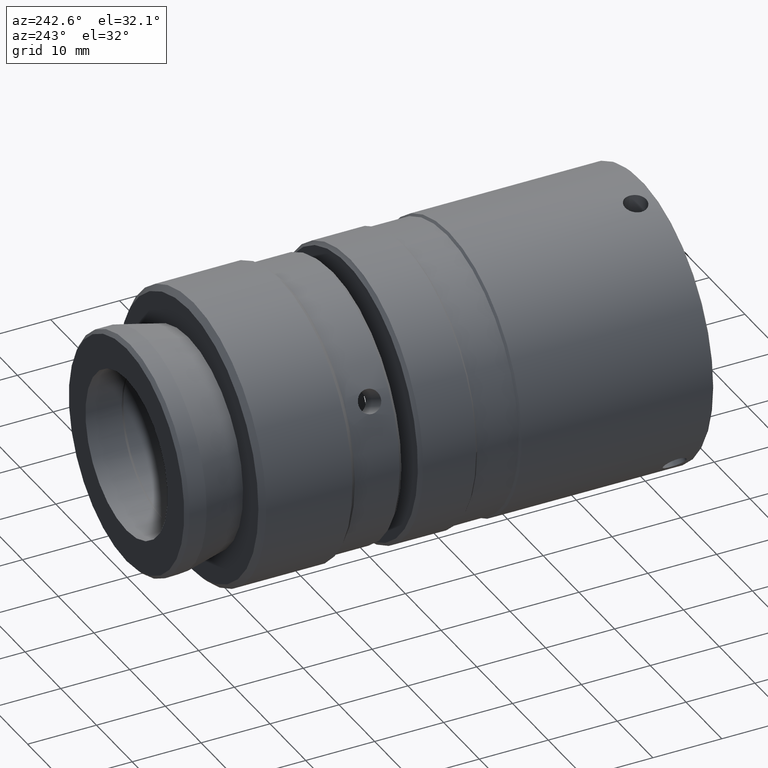
[diagram: clean part render]
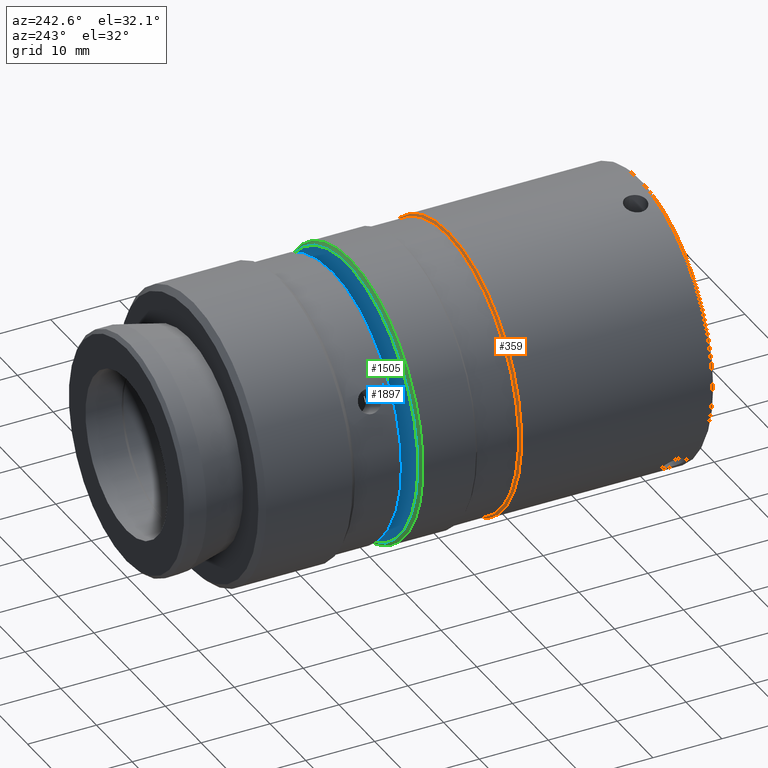
[diagram: same view with three faces highlighted in distinct colors, each labeled with its STEP entity id]
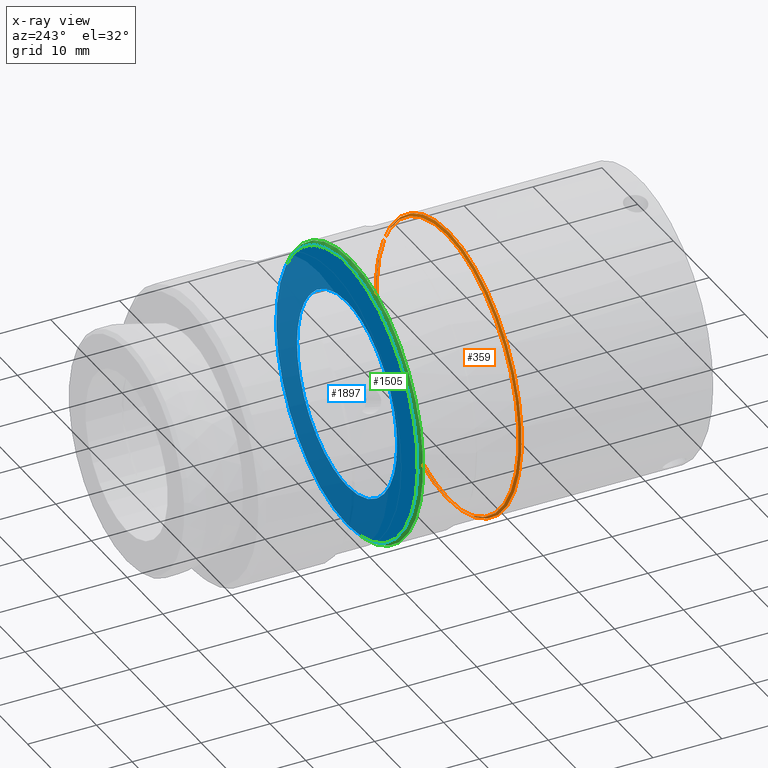
[diagram: x-ray of the same camera — body ghosted, the three highlighted faces saturated]
A machine part, auxiliary view with three faces highlighted in distinct colors.
The next image is the same camera in x-ray (body ghosted, the three faces saturated) — at least one of them is partly hidden behind the body in this view.
Their STEP definitions:

[orange] entity #359 — the highlighted conical surface has half-angle 45 deg.
#81 = DIRECTION ( 'NONE',  ( 0.000000000000000000, 0.000000000000000000, 1.000000000000000000 ) ) ;
#124 = AXIS2_PLACEMENT_3D ( 'NONE', #1053, #2024, #1025 ) ;
#183 = ORIENTED_EDGE ( 'NONE', *, *, #1588, .T. ) ;
#212 = CIRCLE ( 'NONE', #124, 20.01999890642491309 ) ;
#217 = EDGE_CURVE ( 'NONE', #1643, #1643, #589, .T. ) ;
#359 = ADVANCED_FACE ( 'NONE', ( #385, #1457 ), #960, .T. ) ;
#385 = FACE_OUTER_BOUND ( 'NONE', #1945, .T. ) ;
#479 = AXIS2_PLACEMENT_3D ( 'NONE', #543, #995, #1944 ) ;
#543 = CARTESIAN_POINT ( 'NONE',  ( 45.63870267272136516, 15.55661786820467007, 43.32268782812209196 ) ) ;
#589 = CIRCLE ( 'NONE', #1673, 20.31999726070932866 ) ;
#655 = ORIENTED_EDGE ( 'NONE', *, *, #217, .F. ) ;
#734 = VERTEX_POINT ( 'NONE', #1233 ) ;
#854 = DIRECTION ( 'NONE',  ( -0.000000000000000000, -1.000000000000000000, -0.000000000000000000 ) ) ;
#960 = CONICAL_SURFACE ( 'NONE', #479, 20.31999807287878568, 0.7853981258637406926 ) ;
#995 = DIRECTION ( 'NONE',  ( 0.000000000000000000, -1.000000000000000000, 0.000000000000000000 ) ) ;
#1025 = DIRECTION ( 'NONE',  ( 0.000000000000000000, 0.000000000000000000, -1.000000000000000000 ) ) ;
#1053 = CARTESIAN_POINT ( 'NONE',  ( 45.63870267272136516, 15.85661705717870262, 43.32268782812209196 ) ) ;
#1233 = CARTESIAN_POINT ( 'NONE',  ( 45.63870267272136516, 15.85661705717870262, 23.30268892169717887 ) ) ;
#1457 = FACE_BOUND ( 'NONE', #1787, .T. ) ;
#1588 = EDGE_CURVE ( 'NONE', #734, #734, #212, .T. ) ;
#1643 = VERTEX_POINT ( 'NONE', #1973 ) ;
#1673 = AXIS2_PLACEMENT_3D ( 'NONE', #1817, #854, #81 ) ;
#1787 = EDGE_LOOP ( 'NONE', ( #183 ) ) ;
#1817 = CARTESIAN_POINT ( 'NONE',  ( 45.63870267272136516, 15.55661705603528233, 43.32268782812209196 ) ) ;
#1944 = DIRECTION ( 'NONE',  ( 0.000000000000000000, 0.000000000000000000, -1.000000000000000000 ) ) ;
#1945 = EDGE_LOOP ( 'NONE', ( #655 ) ) ;
#1973 = CARTESIAN_POINT ( 'NONE',  ( 45.63870267272136516, 15.55661705603528233, 63.64268508883142061 ) ) ;
#2024 = DIRECTION ( 'NONE',  ( 0.000000000000000000, -1.000000000000000000, 0.000000000000000000 ) ) ;

[blue] entity #1897 — the highlighted planar face has unit normal (0, -1, 0).
#3 = CARTESIAN_POINT ( 'NONE',  ( 54.66087623535627671, 30.35366667322863776, 32.59829459461528955 ) ) ;
#10 = CARTESIAN_POINT ( 'NONE',  ( 32.58027514969628413, 30.35366667322864132, 48.37027933648387545 ) ) ;
#23 = CARTESIAN_POINT ( 'NONE',  ( 33.48604558355999217, 30.35366667322863776, 50.28064861912020689 ) ) ;
#32 = DIRECTION ( 'NONE',  ( 0.000000000000000000, -1.000000000000000000, 0.000000000000000000 ) ) ;
#33 = CARTESIAN_POINT ( 'NONE',  ( 31.75308848968266062, 30.35366667322863421, 45.13140338966040588 ) ) ;
#47 = CARTESIAN_POINT ( 'NONE',  ( 39.40265808648188539, 30.35366667322863776, 30.77252150035418765 ) ) ;
#60 = CARTESIAN_POINT ( 'NONE',  ( 35.39772601076866465, 30.35366667322863776, 33.76462236312958254 ) ) ;
#82 = CARTESIAN_POINT ( 'NONE',  ( 43.93286081276013277, 30.35366667322864487, 57.24477954739943186 ) ) ;
#88 = CARTESIAN_POINT ( 'NONE',  ( 46.06669304492272232, 30.35366667322864487, 57.32268782812211327 ) ) ;
#94 = CARTESIAN_POINT ( 'NONE',  ( 36.61652911008112454, 30.35366667322864132, 54.04708106162491532 ) ) ;
#103 = CARTESIAN_POINT ( 'NONE',  ( 47.44764512464394102, 30.35366667322864487, 57.20826004081069271 ) ) ;
#111 = CARTESIAN_POINT ( 'NONE',  ( 58.82276626306069289, 30.35366667322864132, 48.05420447735371425 ) ) ;
#120 = CARTESIAN_POINT ( 'NONE',  ( 49.72813195842265088, 30.35366667322863776, 29.91969883830028820 ) ) ;
#130 = CARTESIAN_POINT ( 'NONE',  ( 50.98400863279298534, 30.35366667322863776, 30.38306672768814209 ) ) ;
#143 = CARTESIAN_POINT ( 'NONE',  ( 58.48174888480523492, 30.35366667322864132, 37.72978056529146329 ) ) ;
#153 = CARTESIAN_POINT ( 'NONE',  ( 46.49555898676344867, 30.35366667322865197, 29.32272028696540289 ) ) ;
#167 = CARTESIAN_POINT ( 'NONE',  ( 32.54966588280276341, 30.35366667322864487, 48.29085719649300756 ) ) ;
#174 = CARTESIAN_POINT ( 'NONE',  ( 45.63870267272136516, 30.35366667322864132, 23.50268782812237589 ) ) ;
#179 = CARTESIAN_POINT ( 'NONE',  ( 31.87729478059504018, 30.35366667322864487, 40.74891463118267154 ) ) ;
#180 = CARTESIAN_POINT ( 'NONE',  ( 41.43703278318668737, 30.35366667322864132, 43.32268782812209196 ) ) ;
#191 = CARTESIAN_POINT ( 'NONE',  ( 38.02829137467352894, 30.35366667322864487, 31.57172372075717348 ) ) ;
#201 = CARTESIAN_POINT ( 'NONE',  ( 40.04579540989369946, 30.35366667322864487, 30.47964161603635702 ) ) ;
#215 = CARTESIAN_POINT ( 'NONE',  ( 34.40073396783783011, 30.35366667322863776, 34.96727995106603260 ) ) ;
#233 = AXIS2_PLACEMENT_3D ( 'NONE', #180, #1286, #513 ) ;
#245 = CARTESIAN_POINT ( 'NONE',  ( 59.43801066682954115, 30.35366667322864842, 40.95963134834791219 ) ) ;
#252 = CARTESIAN_POINT ( 'NONE',  ( 38.98363462672233481, 30.35366667322863066, 55.65577592233105264 ) ) ;
#263 = B_SPLINE_CURVE_WITH_KNOTS ( 'NONE', 3,
 ( #1069, #88, #1077, #103, #1263, #935, #425, #1378, #442, #1896, #1057, #756, #417, #432, #723, #925, #1390, #265, #1720, #273, #2047, #577, #1857, #1555, #1410, #1234, #1253, #749, #912, #1083, #1582, #767, #1243, #1880, #899, #2017, #606, #1571, #1870, #1401, #2054, #111, #1727, #2038, #406, #586, #1712, #1417, #1092, #1737, #919, #1563, #283, #564, #1219, #245, #945, #1603, #294, #1273, #1777, #793, #1619, #1933, #652, #1758, #333, #143, #955, #1915, #1595, #305, #967, #1445, #2071, #1113, #635, #3, #801, #463, #1923, #1290, #322, #472, #985, #975, #1612, #130, #1121, #1429, #2082, #2064, #120, #1766, #1307, #313, #1436, #1281, #1908, #626, #153, #493 ),
 .UNSPECIFIED., .F., .F.,
 ( 4, 1, 1, 1, 1, 2, 2, 1, 1, 1, 1, 2, 2, 1, 1, 1, 2, 2, 2, 1, 1, 1, 2, 2, 1, 1, 1, 1, 2, 2, 1, 1, 1, 1, 2, 2, 2, 1, 1, 1, 1, 2, 2, 1, 1, 1, 1, 2, 2, 1, 1, 1, 2, 2, 2, 1, 1, 1, 2, 2, 1, 1, 1, 1, 2, 2, 1, 1, 1, 1, 2, 2, 4 ),
 ( 0.000000000000000000, 0.03124999999998832878, 0.04687499999998224337, 0.05468749999997920413, 0.05859374999997763594, 0.06054687499997690042, 0.06249999999997616490, 0.09374999999997132849, 0.1093749999999688999, 0.1171874999999679146, 0.1210937499999676509, 0.1230468749999677480, 0.1249999999999678313, 0.1562499999999688860, 0.1718749999999693301, 0.1796874999999695521, 0.1835937499999696076, 0.1874999999999696354, 0.2499999999999722444, 0.2812499999999735767, 0.2968749999999741873, 0.3046874999999744649, 0.3085937499999746869, 0.3124999999999748534, 0.3437499999999728550, 0.3593749999999716338, 0.3671874999999710787, 0.3710937499999706346, 0.3730468749999704681, 0.3749999999999703015, 0.4062499999999663602, 0.4218749999999644174, 0.4296874999999634182, 0.4335937499999629741, 0.4355468749999628075, 0.4374999999999625855, 0.4999999999999638067, 0.5312499999999643618, 0.5468749999999643618, 0.5546874999999643618, 0.5585937499999643618, 0.5605468749999642508, 0.5624999999999642508, 0.5937499999999658051, 0.6093749999999665823, 0.6171874999999669154, 0.6210937499999670264, 0.6230468749999669154, 0.6249999999999668043, 0.6562499999999706901, 0.6718749999999725775, 0.6796874999999734657, 0.6835937499999736877, 0.6874999999999740208, 0.7499999999999761302, 0.7812499999999770184, 0.7968749999999773515, 0.8046874999999775735, 0.8085937499999774625, 0.8124999999999773515, 0.8437499999999774625, 0.8593749999999774625, 0.8671874999999772404, 0.8710937499999771294, 0.8730468749999772404, 0.8749999999999773515, 0.9062499999999811262, 0.9218749999999831246, 0.9296874999999841238, 0.9335937499999844569, 0.9355468749999845679, 0.9374999999999845679, 1.000000000000000000 ),
 .UNSPECIFIED. ) ;
#265 = CARTESIAN_POINT ( 'NONE',  ( 51.23160993554363074, 30.35366667322864132, 56.16573404020971338 ) ) ;
#273 = CARTESIAN_POINT ( 'NONE',  ( 52.59666346371436418, 30.35366667322863421, 55.47534491728468709 ) ) ;
#283 = CARTESIAN_POINT ( 'NONE',  ( 59.60954302792209347, 30.35366667322863421, 42.25557185559569717 ) ) ;
#294 = CARTESIAN_POINT ( 'NONE',  ( 59.41013576382245986, 30.35366667322864487, 40.80308877389722255 ) ) ;
#305 = CARTESIAN_POINT ( 'NONE',  ( 57.48450014634912009, 30.35366667322864487, 35.86074127423291458 ) ) ;
#313 = CARTESIAN_POINT ( 'NONE',  ( 48.38132090459405532, 30.35366667322863776, 29.59375486044225312 ) ) ;
#322 = CARTESIAN_POINT ( 'NONE',  ( 53.34909758973284966, 30.35366667322863776, 31.63709092498251252 ) ) ;
#327 = CARTESIAN_POINT ( 'NONE',  ( 32.47998111692992040, 30.35366667322863776, 48.10505358639640150 ) ) ;
#333 = CARTESIAN_POINT ( 'NONE',  ( 58.66661326276958022, 30.35366667322865197, 38.19683572731562293 ) ) ;
#335 = VERTEX_POINT ( 'NONE', #174 ) ;
#339 = CARTESIAN_POINT ( 'NONE',  ( 36.42217118679213428, 30.35366667322864132, 32.74033394827176124 ) ) ;
#340 = FACE_OUTER_BOUND ( 'NONE', #1095, .T. ) ;
#350 = CARTESIAN_POINT ( 'NONE',  ( 40.51285057191526562, 30.35366667322864132, 30.29477723807378808 ) ) ;
#364 = CARTESIAN_POINT ( 'NONE',  ( 34.44919672051415205, 30.35366667322864487, 51.79202836500988383 ) ) ;
#376 = CARTESIAN_POINT ( 'NONE',  ( 31.63867069531179510, 30.35366667322864842, 43.75050533145925868 ) ) ;
#401 = CARTESIAN_POINT ( 'NONE',  ( 36.08063720772046423, 30.35366667322864842, 53.56366449006794284 ) ) ;
#406 = CARTESIAN_POINT ( 'NONE',  ( 59.32798814142892496, 30.35366667322863776, 46.25975807836991294 ) ) ;
#417 = CARTESIAN_POINT ( 'NONE',  ( 50.42106843075291067, 30.35366667322864487, 56.48140938401004263 ) ) ;
#421 = CARTESIAN_POINT ( 'NONE',  ( 44.78202172401680059, 30.35366667322864132, 57.32268782812207775 ) ) ;
#423 = CIRCLE ( 'NONE', #1769, 19.81999999999971251 ) ;
#425 = CARTESIAN_POINT ( 'NONE',  ( 48.08085947176112285, 30.35366667322864487, 57.10805964460782036 ) ) ;
#428 = EDGE_CURVE ( 'NONE', #1623, #1730, #2091, .T. ) ;
#432 = CARTESIAN_POINT ( 'NONE',  ( 50.60687204096247882, 30.35366667322864487, 56.41172461809227912 ) ) ;
#442 = CARTESIAN_POINT ( 'NONE',  ( 48.15830172696567502, 30.35366667322864487, 57.09412091921542753 ) ) ;
#463 = CARTESIAN_POINT ( 'NONE',  ( 53.65033809046109781, 30.35366667322863421, 31.84053401975425857 ) ) ;
#472 = CARTESIAN_POINT ( 'NONE',  ( 52.90397226315538859, 30.35366667322863776, 31.34602863968728670 ) ) ;
#478 = CARTESIAN_POINT ( 'NONE',  ( 43.27561123085837380, 30.35366667322864132, 29.52338630131415087 ) ) ;
#488 = CARTESIAN_POINT ( 'NONE',  ( 31.63876662754050528, 30.35366667322863421, 42.46705282144687743 ) ) ;
#491 = CARTESIAN_POINT ( 'NONE',  ( 45.63870267272136516, 30.35366667322864132, 29.32268782812209196 ) ) ;
#493 = CARTESIAN_POINT ( 'NONE',  ( 45.63870267272136516, 30.35366667322864132, 29.32268782812209196 ) ) ;
#499 = CARTESIAN_POINT ( 'NONE',  ( 38.17675611883375097, 30.35366667322864132, 31.47689035449330319 ) ) ;
#501 = FACE_BOUND ( 'NONE', #1328, .T. ) ;
#512 = CARTESIAN_POINT ( 'NONE',  ( 31.80849389565477381, 30.35366667322864842, 45.50114102786930914 ) ) ;
#513 = DIRECTION ( 'NONE',  ( 0.000000000000000000, -0.000000000000000000, -1.000000000000000000 ) ) ;
#523 = CARTESIAN_POINT ( 'NONE',  ( 33.88773856535669182, 30.35366667322864132, 50.93309912617030477 ) ) ;
#536 = CARTESIAN_POINT ( 'NONE',  ( 40.67053330435254566, 30.35366667322864132, 30.23365103820253807 ) ) ;
#542 = ORIENTED_EDGE ( 'NONE', *, *, #1947, .F. ) ;
#547 = CARTESIAN_POINT ( 'NONE',  ( 37.28329479565435634, 30.35366667322864132, 54.56065653299668128 ) ) ;
#559 = CARTESIAN_POINT ( 'NONE',  ( 42.31477884913381615, 30.35366667322863776, 56.92576238200577876 ) ) ;
#564 = CARTESIAN_POINT ( 'NONE',  ( 59.52431685576372900, 30.35366667322864132, 41.51397226660985496 ) ) ;
#577 = CARTESIAN_POINT ( 'NONE',  ( 53.10064922660674824, 30.35366667322863066, 55.16848530175152376 ) ) ;
#582 = CARTESIAN_POINT ( 'NONE',  ( 40.45901365741543998, 30.35366667322863421, 56.32928483157448341 ) ) ;
#586 = CARTESIAN_POINT ( 'NONE',  ( 59.36763564039801366, 30.35366667322864842, 46.06530606000451655 ) ) ;
#606 = CARTESIAN_POINT ( 'NONE',  ( 58.49860054424598133, 30.35366667322863421, 48.85875602519767824 ) ) ;
#626 = CARTESIAN_POINT ( 'NONE',  ( 47.34471989802010228, 30.35366667322864842, 29.40062856768805233 ) ) ;
#635 = CARTESIAN_POINT ( 'NONE',  ( 55.19676813771903312, 30.35366667322864487, 33.08171116617376839 ) ) ;
#652 = CARTESIAN_POINT ( 'NONE',  ( 58.69713019574639645, 30.35366667322864487, 38.27509631975953397 ) ) ;
#657 = ORIENTED_EDGE ( 'NONE', *, *, #428, .F. ) ;
#658 = CARTESIAN_POINT ( 'NONE',  ( 32.61079208267300089, 30.35366667322864487, 48.44853992892799255 ) ) ;
#669 = CARTESIAN_POINT ( 'NONE',  ( 33.69875421292354645, 30.35366667322864487, 50.63450405336296711 ) ) ;
#680 = CARTESIAN_POINT ( 'NONE',  ( 33.79290519909207546, 30.35366667322863066, 50.78463438200887481 ) ) ;
#694 = CARTESIAN_POINT ( 'NONE',  ( 33.30561457851306528, 30.35366667322862355, 36.66761978212549167 ) ) ;
#707 = CARTESIAN_POINT ( 'NONE',  ( 33.95310576958329563, 30.35366667322864132, 35.61229291110809214 ) ) ;
#723 = CARTESIAN_POINT ( 'NONE',  ( 50.68629418100736927, 30.35366667322864132, 56.38111535117731421 ) ) ;
#742 = CARTESIAN_POINT ( 'NONE',  ( 39.72476336922802176, 30.35366667322864132, 56.01621489842835189 ) ) ;
#749 = CARTESIAN_POINT ( 'NONE',  ( 56.36309590624178156, 30.35366667322863776, 52.34486139074609667 ) ) ;
#756 = CARTESIAN_POINT ( 'NONE',  ( 50.04752007658109392, 30.35366667322864132, 56.61383148830995538 ) ) ;
#767 = CARTESIAN_POINT ( 'NONE',  ( 57.29017334674325213, 30.35366667322864487, 51.08456616822144980 ) ) ;
#793 = CARTESIAN_POINT ( 'NONE',  ( 58.92984633274470241, 30.35366667322863776, 38.91387042384521067 ) ) ;
#801 = CARTESIAN_POINT ( 'NONE',  ( 53.99411054978429547, 30.35366667322863776, 32.08471912324447572 ) ) ;
#817 = CARTESIAN_POINT ( 'NONE',  ( 31.89351891188926658, 30.35366667322864487, 40.66362586546468805 ) ) ;
#829 = DIRECTION ( 'NONE',  ( 0.000000000000000000, 0.000000000000000000, -1.000000000000000000 ) ) ;
#831 = CARTESIAN_POINT ( 'NONE',  ( 31.83939467861421235, 30.35366667322863421, 45.68574430790383190 ) ) ;
#834 = CARTESIAN_POINT ( 'NONE',  ( 45.21079992850087592, 30.35366667322864487, 29.32267161860375992 ) ) ;
#843 = CARTESIAN_POINT ( 'NONE',  ( 40.53820928850428373, 30.35366667322863776, 30.28483189796664377 ) ) ;
#855 = CARTESIAN_POINT ( 'NONE',  ( 38.07700745536237719, 30.35366667322864842, 31.54032215527502458 ) ) ;
#865 = ORIENTED_EDGE ( 'NONE', *, *, #1408, .F. ) ;
#870 = CARTESIAN_POINT ( 'NONE',  ( 31.94941720400817076, 30.35366667322863066, 40.38561757789734230 ) ) ;
#899 = CARTESIAN_POINT ( 'NONE',  ( 57.97179076691474364, 30.35366667322863776, 49.97775587413455867 ) ) ;
#907 = CARTESIAN_POINT ( 'NONE',  ( 45.63870267272136516, 30.35366667322864132, 57.32268782812209196 ) ) ;
#912 = CARTESIAN_POINT ( 'NONE',  ( 56.87667137760922031, 30.35366667322863776, 51.67809570517678708 ) ) ;
#916 = CARTESIAN_POINT ( 'NONE',  ( 40.43039482538431173, 30.35366667322864487, 56.31785273685046889 ) ) ;
#919 = CARTESIAN_POINT ( 'NONE',  ( 59.63863871789649806, 30.35366667322863421, 44.17832283475546973 ) ) ;
#925 = CARTESIAN_POINT ( 'NONE',  ( 50.73919605690031176, 30.35366667322863776, 56.36054375829264984 ) ) ;
#935 = CARTESIAN_POINT ( 'NONE',  ( 48.00183005574849915, 30.35366667322864842, 57.12198270649478360 ) ) ;
#945 = CARTESIAN_POINT ( 'NONE',  ( 59.42408217128070191, 30.35366667322864842, 40.88057255813031787 ) ) ;
#955 = CARTESIAN_POINT ( 'NONE',  ( 58.18886900048615729, 30.35366667322863421, 37.08664324187784445 ) ) ;
#967 = CARTESIAN_POINT ( 'NONE',  ( 57.42106834556779660, 30.35366667322864487, 35.76099261076208791 ) ) ;
#975 = CARTESIAN_POINT ( 'NONE',  ( 51.55264197623416322, 30.35366667322864132, 30.62916075782887049 ) ) ;
#980 = CARTESIAN_POINT ( 'NONE',  ( 32.64353776399309481, 30.35366667322865197, 38.11437998078504563 ) ) ;
#985 = CARTESIAN_POINT ( 'NONE',  ( 52.29377071874637295, 30.35366667322863421, 30.98959973393053602 ) ) ;
#992 = CARTESIAN_POINT ( 'NONE',  ( 33.98723199870055822, 30.35366667322864842, 35.56080948802200936 ) ) ;
#993 = PLANE ( 'NONE',  #233 ) ;
#1003 = CARTESIAN_POINT ( 'NONE',  ( 38.68074188172126071, 30.35366667322864132, 31.17003073896192689 ) ) ;
#1013 = CARTESIAN_POINT ( 'NONE',  ( 31.95495444719655254, 30.35366667322864842, 46.31630943462283057 ) ) ;
#1024 = CARTESIAN_POINT ( 'NONE',  ( 31.86276112738401523, 30.35366667322864132, 45.81749631354308860 ) ) ;
#1057 = CARTESIAN_POINT ( 'NONE',  ( 49.29265883322679542, 30.35366667322864132, 56.85088598676755822 ) ) ;
#1069 = CARTESIAN_POINT ( 'NONE',  ( 45.63870267272136516, 30.35366667322864132, 57.32268782812209196 ) ) ;
#1074 = CARTESIAN_POINT ( 'NONE',  ( 45.63870267272136516, 30.35366667322864132, 57.32268782812209196 ) ) ;
#1077 = CARTESIAN_POINT ( 'NONE',  ( 46.70612116579499684, 30.35366667322864132, 57.29347222285108643 ) ) ;
#1083 = CARTESIAN_POINT ( 'NONE',  ( 57.12085648109519553, 30.35366667322863776, 51.33432324585697870 ) ) ;
#1092 = CARTESIAN_POINT ( 'NONE',  ( 59.40011056484802054, 30.35366667322863776, 45.89646102505921732 ) ) ;
#1095 = EDGE_LOOP ( 'NONE', ( #865 ) ) ;
#1113 = CARTESIAN_POINT ( 'NONE',  ( 56.22105655256029877, 30.35366667322864132, 34.10615634218302006 ) ) ;
#1121 = CARTESIAN_POINT ( 'NONE',  ( 50.90186195611873643, 30.35366667322864132, 30.34964152352058875 ) ) ;
#1130 = CARTESIAN_POINT ( 'NONE',  ( 43.14388369867576500, 30.35366667322864132, 29.54674822297453929 ) ) ;
#1138 = CARTESIAN_POINT ( 'NONE',  ( 32.03562812838295315, 30.35366667322863776, 39.99876398042589898 ) ) ;
#1151 = CARTESIAN_POINT ( 'NONE',  ( 32.94517560241561682, 30.35366667322863421, 37.40874852463051781 ) ) ;
#1154 = CARTESIAN_POINT ( 'NONE',  ( 42.64508106622609773, 30.35366667322864132, 29.63893960259477112 ) ) ;
#1161 = CARTESIAN_POINT ( 'NONE',  ( 45.63870267272136516, 30.35366667322864132, 43.32268782812209196 ) ) ;
#1162 = CARTESIAN_POINT ( 'NONE',  ( 33.08853634495191187, 30.35366667322863776, 49.55873241435897825 ) ) ;
#1174 = CARTESIAN_POINT ( 'NONE',  ( 32.66565636811771611, 30.35366667322864487, 38.05952854472825919 ) ) ;
#1187 = CARTESIAN_POINT ( 'NONE',  ( 34.15654886435019932, 30.35366667322864132, 35.31105241038615361 ) ) ;
#1200 = CARTESIAN_POINT ( 'NONE',  ( 37.87682433261931436, 30.35366667322864842, 54.97415850214126465 ) ) ;
#1219 = CARTESIAN_POINT ( 'NONE',  ( 59.46891144979001353, 30.35366667322863421, 41.14423462838974643 ) ) ;
#1228 = CARTESIAN_POINT ( 'NONE',  ( 40.10263447565137795, 30.35366667322863776, 56.18258569965342275 ) ) ;
#1234 = CARTESIAN_POINT ( 'NONE',  ( 54.85523415864505381, 30.35366667322863776, 53.90504170797328953 ) ) ;
#1238 = CARTESIAN_POINT ( 'NONE',  ( 37.62706725497909588, 30.35366667322864842, 54.80484163648808504 ) ) ;
#1243 = CARTESIAN_POINT ( 'NONE',  ( 57.32429957586089841, 30.35366667322864842, 51.03308274513432963 ) ) ;
#1253 = CARTESIAN_POINT ( 'NONE',  ( 55.87967933467749759, 30.35366667322864842, 52.88075329311352846 ) ) ;
#1263 = CARTESIAN_POINT ( 'NONE',  ( 47.81728822519289679, 30.35366667322864842, 57.15287212248443183 ) ) ;
#1273 = CARTESIAN_POINT ( 'NONE',  ( 59.32245089824701267, 30.35366667322864132, 40.32906622162068544 ) ) ;
#1281 = CARTESIAN_POINT ( 'NONE',  ( 48.24201163592201169, 30.35366667322864487, 29.56683487010345246 ) ) ;
#1286 = DIRECTION ( 'NONE',  ( 0.000000000000000000, -1.000000000000000000, 0.000000000000000000 ) ) ;
#1290 = CARTESIAN_POINT ( 'NONE',  ( 53.40058101282235725, 30.35366667322864487, 31.67121715410214122 ) ) ;
#1307 = CARTESIAN_POINT ( 'NONE',  ( 48.57577292295074045, 30.35366667322864132, 29.63340235940848189 ) ) ;
#1313 = CARTESIAN_POINT ( 'NONE',  ( 33.66204348427714166, 30.35366667322864132, 36.05741823770411258 ) ) ;
#1316 = CARTESIAN_POINT ( 'NONE',  ( 43.46018421042276714, 30.35366667322865197, 29.49249112334728906 ) ) ;
#1325 = CARTESIAN_POINT ( 'NONE',  ( 32.69908157228363166, 30.35366667322864132, 37.97738186805681693 ) ) ;
#1328 = EDGE_LOOP ( 'NONE', ( #657, #542 ) ) ;
#1334 = CARTESIAN_POINT ( 'NONE',  ( 33.85633699987396028, 30.35366667322864487, 50.88438304548057545 ) ) ;
#1349 = CARTESIAN_POINT ( 'NONE',  ( 32.63210566881451768, 30.35366667322864487, 38.14299881396400593 ) ) ;
#1350 = CARTESIAN_POINT ( 'NONE',  ( 45.63870267272136516, 30.35366667322864132, 29.32268782812209196 ) ) ;
#1361 = CARTESIAN_POINT ( 'NONE',  ( 31.85332317416256132, 30.35366667322863776, 45.76480309811796587 ) ) ;
#1378 = CARTESIAN_POINT ( 'NONE',  ( 48.13353242911627206, 30.35366667322865197, 57.09862543873907015 ) ) ;
#1384 = CARTESIAN_POINT ( 'NONE',  ( 41.54927341917593253, 30.35366667322863776, 56.72567683067006783 ) ) ;
#1390 = CARTESIAN_POINT ( 'NONE',  ( 50.76455477352808288, 30.35366667322864132, 56.35059841817015780 ) ) ;
#1397 = CARTESIAN_POINT ( 'NONE',  ( 42.97964071447689349, 30.35366667322863776, 57.06787159070135829 ) ) ;
#1401 = CARTESIAN_POINT ( 'NONE',  ( 58.63386758144886102, 30.35366667322865197, 48.53099567545960724 ) ) ;
#1408 = EDGE_CURVE ( 'NONE', #335, #335, #423, .T. ) ;
#1410 = CARTESIAN_POINT ( 'NONE',  ( 54.10804320959532276, 30.35366667322864487, 54.51219378034166851 ) ) ;
#1417 = CARTESIAN_POINT ( 'NONE',  ( 59.39455563073909872, 30.35366667322865197, 45.92599679132541723 ) ) ;
#1429 = CARTESIAN_POINT ( 'NONE',  ( 50.84701052006000310, 30.35366667322864487, 30.32752291939483058 ) ) ;
#1436 = CARTESIAN_POINT ( 'NONE',  ( 48.29776463537994857, 30.35366667322864487, 29.57750406728979087 ) ) ;
#1445 = CARTESIAN_POINT ( 'NONE',  ( 57.38966678008581823, 30.35366667322864487, 35.71227653007353808 ) ) ;
#1451 = CARTESIAN_POINT ( 'NONE',  ( 44.57143752861426123, 30.35366667322864487, 29.35187506673601021 ) ) ;
#1466 = CARTESIAN_POINT ( 'NONE',  ( 31.86726958162006085, 30.35366667322863421, 45.84228688234608029 ) ) ;
#1479 = CARTESIAN_POINT ( 'NONE',  ( 32.11050451429675689, 30.35366667322863776, 46.97664398918314532 ) ) ;
#1490 = CARTESIAN_POINT ( 'NONE',  ( 32.23571368290045314, 30.35366667322864132, 39.23325854243192623 ) ) ;
#1502 = CARTESIAN_POINT ( 'NONE',  ( 34.05459866975480310, 30.35366667322863776, 35.46060981078093732 ) ) ;
#1517 = CARTESIAN_POINT ( 'NONE',  ( 37.16936213582416570, 30.35366667322864487, 32.13318187592114583 ) ) ;
#1551 = CARTESIAN_POINT ( 'NONE',  ( 42.89608444838507495, 30.35366667322863776, 57.05162079878459025 ) ) ;
#1555 = CARTESIAN_POINT ( 'NONE',  ( 53.24911397077111275, 30.35366667322864487, 55.07365193548557869 ) ) ;
#1563 = CARTESIAN_POINT ( 'NONE',  ( 59.63873465013379871, 30.35366667322864132, 42.89487032480464990 ) ) ;
#1571 = CARTESIAN_POINT ( 'NONE',  ( 58.57832377315581596, 30.35366667322863776, 48.66799378819055022 ) ) ;
#1582 = CARTESIAN_POINT ( 'NONE',  ( 57.22280667568970358, 30.35366667322863776, 51.18476584546236552 ) ) ;
#1595 = CARTESIAN_POINT ( 'NONE',  ( 57.57865113251692435, 30.35366667322864132, 36.01087160287768540 ) ) ;
#1603 = CARTESIAN_POINT ( 'NONE',  ( 59.41464421805891760, 30.35366667322865197, 40.82787934270278640 ) ) ;
#1612 = CARTESIAN_POINT ( 'NONE',  ( 51.17477086980259315, 30.35366667322863066, 30.46278995659834266 ) ) ;
#1619 = CARTESIAN_POINT ( 'NONE',  ( 58.79742422851330730, 30.35366667322863066, 38.54032206984709319 ) ) ;
#1623 = VERTEX_POINT ( 'NONE', #1350 ) ;
#1624 = CARTESIAN_POINT ( 'NONE',  ( 32.77880480119038964, 30.35366667322864132, 37.78661963105304977 ) ) ;
#1635 = CARTESIAN_POINT ( 'NONE',  ( 31.66786231752559999, 30.35366667322863776, 44.38980380068356624 ) ) ;
#1648 = CARTESIAN_POINT ( 'NONE',  ( 41.22988526845235668, 30.35366667322864132, 30.03154416809650940 ) ) ;
#1659 = CARTESIAN_POINT ( 'NONE',  ( 32.60084674256611237, 30.35366667322863776, 48.42318121233957839 ) ) ;
#1672 = CARTESIAN_POINT ( 'NONE',  ( 31.90976970504177856, 30.35366667322863776, 40.58006959625166843 ) ) ;
#1686 = CARTESIAN_POINT ( 'NONE',  ( 37.77662465537642333, 30.35366667322864487, 54.90679183108555605 ) ) ;
#1697 = CARTESIAN_POINT ( 'NONE',  ( 40.37554338932736187, 30.35366667322864487, 56.29573413272591154 ) ) ;
#1708 = CARTESIAN_POINT ( 'NONE',  ( 35.05634879288763273, 30.35366667322863776, 52.53921931406482315 ) ) ;
#1712 = CARTESIAN_POINT ( 'NONE',  ( 59.38388643355180108, 30.35366667322863776, 45.98174979078622471 ) ) ;
#1717 = CARTESIAN_POINT ( 'NONE',  ( 37.92830775570760693, 30.35366667322864842, 55.00828473126016149 ) ) ;
#1720 = CARTESIAN_POINT ( 'NONE',  ( 51.87474725895122418, 30.35366667322863421, 55.87285415589334292 ) ) ;
#1727 = CARTESIAN_POINT ( 'NONE',  ( 59.04169166252928136, 30.35366667322863776, 47.41211711386603156 ) ) ;
#1730 = VERTEX_POINT ( 'NONE', #907 ) ;
#1737 = CARTESIAN_POINT ( 'NONE',  ( 59.56073033312863174, 30.35366667322863776, 45.02887574052947883 ) ) ;
#1758 = CARTESIAN_POINT ( 'NONE',  ( 58.67655860287641190, 30.35366667322864487, 38.22219444390379550 ) ) ;
#1766 = CARTESIAN_POINT ( 'NONE',  ( 48.96262652042577912, 30.35366667322863776, 29.71961328378301914 ) ) ;
#1769 = AXIS2_PLACEMENT_3D ( 'NONE', #1161, #32, #829 ) ;
#1775 = CARTESIAN_POINT ( 'NONE',  ( 43.11910361849665208, 30.35366667322863421, 29.55125473702100791 ) ) ;
#1777 = CARTESIAN_POINT ( 'NONE',  ( 59.16690083114750820, 30.35366667322863776, 39.66873166706051279 ) ) ;
#1782 = CARTESIAN_POINT ( 'NONE',  ( 32.34755901269907241, 30.35366667322863776, 47.73150523239839771 ) ) ;
#1796 = CARTESIAN_POINT ( 'NONE',  ( 32.45463908237475437, 30.35366667322864132, 38.59117117892092352 ) ) ;
#1799 = CARTESIAN_POINT ( 'NONE',  ( 41.98474651167012439, 30.35366667322863421, 29.79448966969303925 ) ) ;
#1808 = CARTESIAN_POINT ( 'NONE',  ( 40.85633691445120519, 30.35366667322863776, 30.16396627232877492 ) ) ;
#1818 = CARTESIAN_POINT ( 'NONE',  ( 38.32688644747926077, 30.35366667322864487, 31.38273936832502287 ) ) ;
#1830 = CARTESIAN_POINT ( 'NONE',  ( 34.91430943920660468, 30.35366667322863776, 34.30051426549649563 ) ) ;
#1842 = CARTESIAN_POINT ( 'NONE',  ( 40.29339671265565670, 30.35366667322864132, 56.26230892856003862 ) ) ;
#1857 = CARTESIAN_POINT ( 'NONE',  ( 53.20039789007941522, 30.35366667322865197, 55.10505350096942578 ) ) ;
#1866 = CARTESIAN_POINT ( 'NONE',  ( 42.70163243656008945, 30.35366667322864132, 57.01197330240339056 ) ) ;
#1870 = CARTESIAN_POINT ( 'NONE',  ( 58.61174897732321654, 30.35366667322863776, 48.58584711151749502 ) ) ;
#1874 = CARTESIAN_POINT ( 'NONE',  ( 43.06491866164476789, 30.35366667322864842, 57.08409371840896540 ) ) ;
#1880 = CARTESIAN_POINT ( 'NONE',  ( 57.61536186115723979, 30.35366667322864132, 50.58795741854889627 ) ) ;
#1896 = CARTESIAN_POINT ( 'NONE',  ( 48.63232427890477538, 30.35366667322864132, 57.00643605377310763 ) ) ;
#1897 = ADVANCED_FACE ( 'NONE', ( #501, #340 ), #993, .F. ) ;
#1908 = CARTESIAN_POINT ( 'NONE',  ( 48.21248120363100753, 30.35366667322863776, 29.56128092349634073 ) ) ;
#1915 = CARTESIAN_POINT ( 'NONE',  ( 57.79135976187910728, 30.35366667322863776, 36.36472703711834953 ) ) ;
#1923 = CARTESIAN_POINT ( 'NONE',  ( 53.50078069006463011, 30.35366667322864132, 31.73858382515741638 ) ) ;
#1931 = CARTESIAN_POINT ( 'NONE',  ( 43.82987523252374018, 30.35366667322864487, 29.43709434044068018 ) ) ;
#1933 = CARTESIAN_POINT ( 'NONE',  ( 58.72773946264009481, 30.35366667322864842, 38.35451845975044449 ) ) ;
#1947 = EDGE_CURVE ( 'NONE', #1730, #1623, #263, .T. ) ;
#1954 = CARTESIAN_POINT ( 'NONE',  ( 32.79565646063471007, 30.35366667322864487, 48.91559509094814473 ) ) ;
#1957 = CARTESIAN_POINT ( 'NONE',  ( 43.19656692493491335, 30.35366667322864132, 29.53731211755285457 ) ) ;
#1967 = CARTESIAN_POINT ( 'NONE',  ( 40.59111116436067590, 30.35366667322863066, 30.26426030509650289 ) ) ;
#1976 = CARTESIAN_POINT ( 'NONE',  ( 31.88284971470286422, 30.35366667322864487, 40.71937886492183623 ) ) ;
#1988 = CARTESIAN_POINT ( 'NONE',  ( 31.71667501230843200, 30.35366667322864132, 41.61649991576332752 ) ) ;
#2001 = CARTESIAN_POINT ( 'NONE',  ( 40.90718604188868568, 30.35366667322863776, 56.50675142574133503 ) ) ;
#2010 = CARTESIAN_POINT ( 'NONE',  ( 43.03539371178154482, 30.35366667322864487, 57.07854078703551437 ) ) ;
#2017 = CARTESIAN_POINT ( 'NONE',  ( 58.33222974301597930, 30.35366667322863776, 49.23662713162538296 ) ) ;
#2034 = CARTESIAN_POINT ( 'NONE',  ( 38.37343308230200734, 30.35366667322863776, 55.29934701656669915 ) ) ;
#2038 = CARTESIAN_POINT ( 'NONE',  ( 59.24177721705002142, 30.35366667322864132, 46.64661167585839507 ) ) ;
#2047 = CARTESIAN_POINT ( 'NONE',  ( 52.95051889795951894, 30.35366667322864487, 55.26263628792048621 ) ) ;
#2054 = CARTESIAN_POINT ( 'NONE',  ( 58.64529967662898002, 30.35366667322864132, 48.50237684227754187 ) ) ;
#2064 = CARTESIAN_POINT ( 'NONE',  ( 50.37021932192870821, 30.35366667322863421, 30.13862423777487365 ) ) ;
#2071 = CARTESIAN_POINT ( 'NONE',  ( 56.82820862492527425, 30.35366667322864487, 34.85334729122935471 ) ) ;
#2082 = CARTESIAN_POINT ( 'NONE',  ( 50.81839168687861985, 30.35366667322864842, 30.31609082421507395 ) ) ;
#2091 = B_SPLINE_CURVE_WITH_KNOTS ( 'NONE', 3,
 ( #491, #834, #1451, #1931, #1316, #478, #1957, #1130, #1775, #1154, #1799, #1648, #1808, #536, #1967, #843, #350, #201, #47, #1003, #1818, #499, #855, #191, #1517, #339, #60, #1830, #215, #1187, #1502, #992, #707, #1313, #694, #1151, #1624, #1325, #1174, #980, #1349, #1796, #1490, #1138, #870, #1672, #817, #1976, #179, #1988, #488, #376, #1635, #33, #512, #831, #1361, #1024, #1466, #1013, #1479, #1782, #327, #167, #10, #1659, #658, #1954, #1162, #23, #669, #680, #1334, #523, #364, #1708, #401, #94, #547, #1238, #1686, #1200, #1717, #2034, #252, #742, #1228, #1842, #1697, #916, #582, #2001, #1384, #559, #1866, #1551, #1397, #2010, #1874, #82, #421, #1074 ),
 .UNSPECIFIED., .F., .F.,
 ( 4, 1, 1, 1, 1, 2, 2, 1, 1, 1, 1, 2, 2, 1, 1, 1, 2, 2, 2, 1, 1, 1, 2, 2, 1, 1, 1, 1, 2, 2, 1, 1, 1, 1, 2, 2, 2, 1, 1, 1, 1, 2, 2, 1, 1, 1, 1, 2, 2, 1, 1, 1, 2, 2, 2, 1, 1, 1, 2, 2, 1, 1, 1, 1, 2, 2, 1, 1, 1, 1, 2, 2, 4 ),
 ( 0.000000000000000000, 0.03124999999997977312, 0.04687499999996990602, 0.05468749999996497940, 0.05859374999996277977, 0.06054687499996143363, 0.06249999999996008748, 0.09374999999994472477, 0.1093749999999370642, 0.1171874999999334421, 0.1210937499999316380, 0.1230468749999309580, 0.1249999999999302780, 0.1562499999999255318, 0.1718749999999229783, 0.1796874999999215905, 0.1835937499999205635, 0.1874999999999195088, 0.2499999999998998579, 0.2812499999998900324, 0.2968749999998852585, 0.3046874999998830380, 0.3085937499998817612, 0.3124999999998804290, 0.3437499999998692712, 0.3593749999998636646, 0.3671874999998605560, 0.3710937499998590017, 0.3730468749998585021, 0.3749999999998580025, 0.4062499999998531730, 0.4218749999998506750, 0.4296874999998491207, 0.4335937499998482880, 0.4355468749998481770, 0.4374999999998480105, 0.4999999999998575584, 0.5312499999998621103, 0.5468749999998643307, 0.5546874999998651079, 0.5585937499998657740, 0.5605468749998662181, 0.5624999999998666622, 0.5937499999998659961, 0.6093749999998654410, 0.6171874999998653299, 0.6210937499998653299, 0.6230468749998655520, 0.6249999999998656630, 0.6562499999998765432, 0.6718749999998817612, 0.6796874999998845368, 0.6835937499998860911, 0.6874999999998875344, 0.7499999999999069633, 0.7812499999999168443, 0.7968749999999219513, 0.8046874999999243938, 0.8085937499999257261, 0.8124999999999270583, 0.8437499999999378275, 0.8593749999999434896, 0.8671874999999459321, 0.8710937499999473754, 0.8730468749999480416, 0.8749999999999488187, 0.9062499999999618083, 0.9218749999999682476, 0.9296874999999715783, 0.9335937499999732436, 0.9355468749999739098, 0.9374999999999744649, 1.000000000000000000 ),
 .UNSPECIFIED. ) ;

[green] entity #1505 — the highlighted conical surface has half-angle 45 deg.
#32 = DIRECTION ( 'NONE',  ( 0.000000000000000000, -1.000000000000000000, 0.000000000000000000 ) ) ;
#174 = CARTESIAN_POINT ( 'NONE',  ( 45.63870267272136516, 30.35366667322864132, 23.50268782812237589 ) ) ;
#335 = VERTEX_POINT ( 'NONE', #174 ) ;
#338 = ORIENTED_EDGE ( 'NONE', *, *, #1408, .T. ) ;
#394 = VERTEX_POINT ( 'NONE', #552 ) ;
#423 = CIRCLE ( 'NONE', #1769, 19.81999999999971251 ) ;
#515 = EDGE_LOOP ( 'NONE', ( #338 ) ) ;
#552 = CARTESIAN_POINT ( 'NONE',  ( 45.63870267272136516, 29.85366667322864132, 63.64268751574038419 ) ) ;
#598 = DIRECTION ( 'NONE',  ( 0.000000000000000000, 0.000000000000000000, -1.000000000000000000 ) ) ;
#659 = DIRECTION ( 'NONE',  ( 0.000000000000000000, 0.000000000000000000, 1.000000000000000000 ) ) ;
#829 = DIRECTION ( 'NONE',  ( 0.000000000000000000, 0.000000000000000000, -1.000000000000000000 ) ) ;
#962 = AXIS2_PLACEMENT_3D ( 'NONE', #2049, #1419, #598 ) ;
#1054 = CIRCLE ( 'NONE', #1149, 20.31999968761829223 ) ;
#1149 = AXIS2_PLACEMENT_3D ( 'NONE', #1326, #1797, #659 ) ;
#1161 = CARTESIAN_POINT ( 'NONE',  ( 45.63870267272136516, 30.35366667322864132, 43.32268782812209196 ) ) ;
#1326 = CARTESIAN_POINT ( 'NONE',  ( 45.63870267272136516, 29.85366667322864132, 43.32268782812209196 ) ) ;
#1408 = EDGE_CURVE ( 'NONE', #335, #335, #423, .T. ) ;
#1412 = FACE_OUTER_BOUND ( 'NONE', #1435, .T. ) ;
#1419 = DIRECTION ( 'NONE',  ( 0.000000000000000000, -1.000000000000000000, 0.000000000000000000 ) ) ;
#1435 = EDGE_LOOP ( 'NONE', ( #1914 ) ) ;
#1505 = ADVANCED_FACE ( 'NONE', ( #1584, #1412 ), #1878, .T. ) ;
#1584 = FACE_BOUND ( 'NONE', #515, .T. ) ;
#1769 = AXIS2_PLACEMENT_3D ( 'NONE', #1161, #32, #829 ) ;
#1797 = DIRECTION ( 'NONE',  ( -0.000000000000000000, -1.000000000000000000, -0.000000000000000000 ) ) ;
#1878 = CONICAL_SURFACE ( 'NONE', #962, 20.31999982297567087, 0.7853981217307651752 ) ;
#1883 = EDGE_CURVE ( 'NONE', #394, #394, #1054, .T. ) ;
#1914 = ORIENTED_EDGE ( 'NONE', *, *, #1883, .F. ) ;
#2049 = CARTESIAN_POINT ( 'NONE',  ( 45.63870267272136516, 29.85366680858601285, 43.32268782812209196 ) ) ;